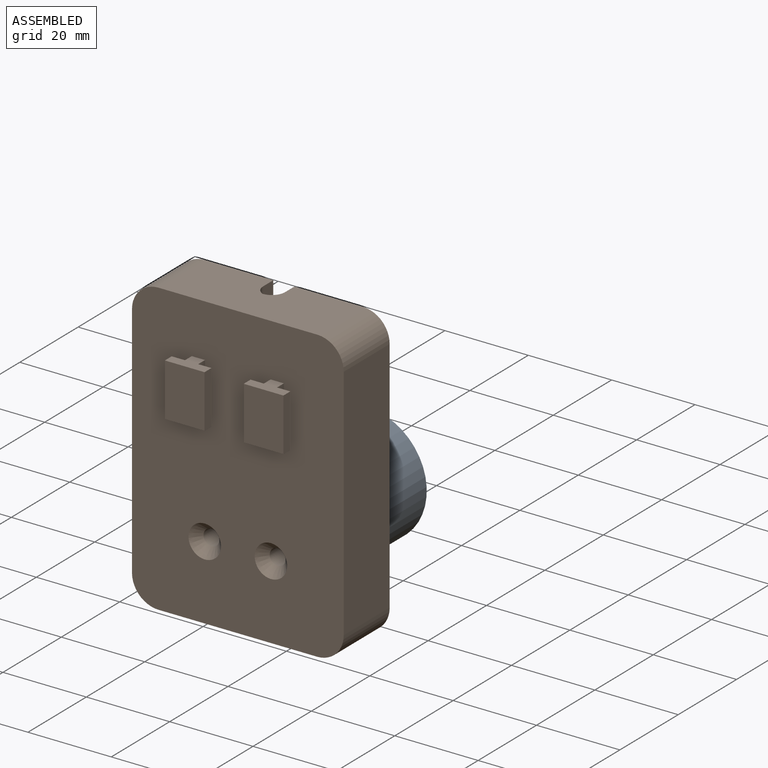
[diagram: assembled view]
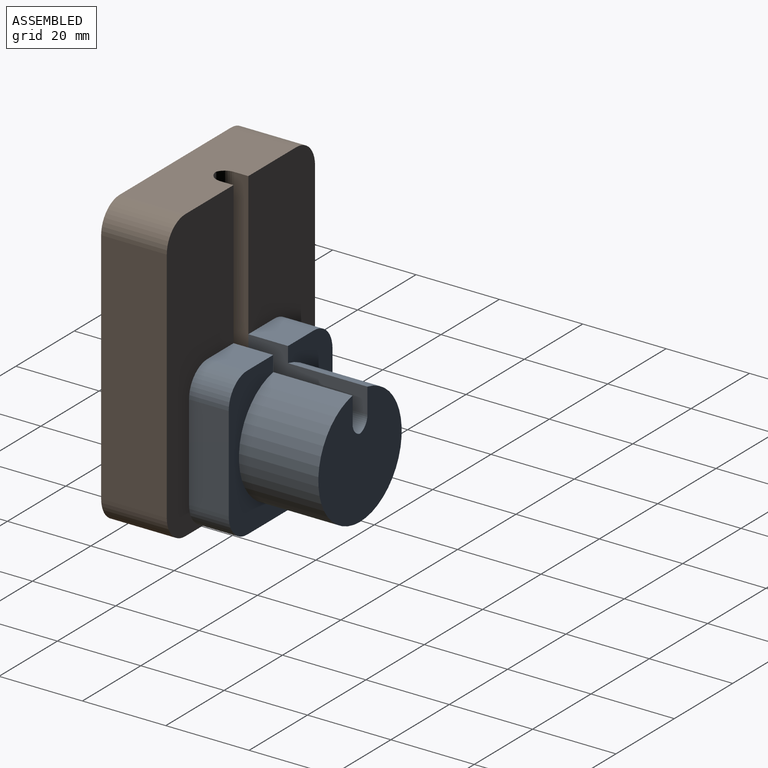
[diagram: assembled view, second angle]
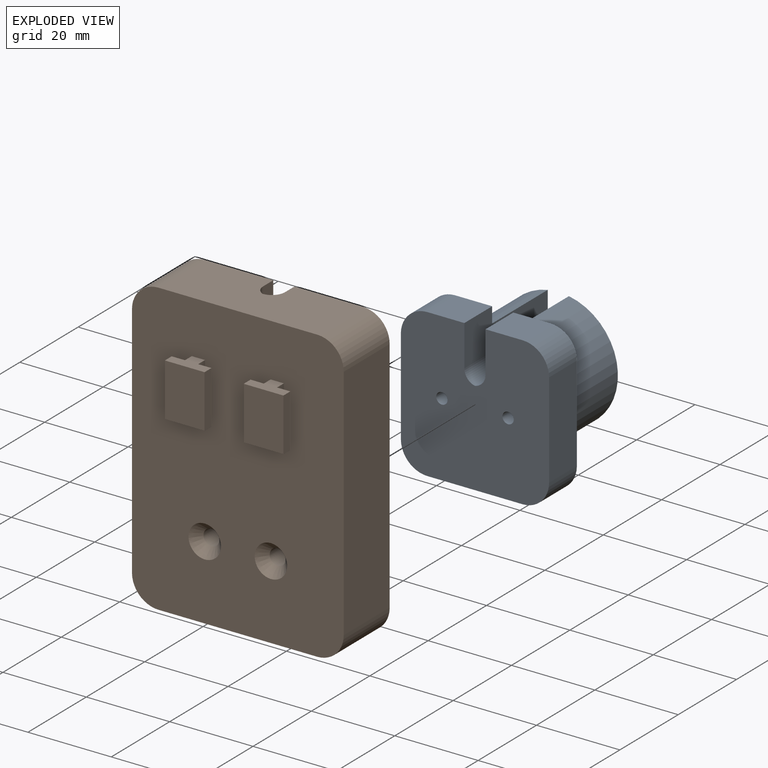
[diagram: exploded view]
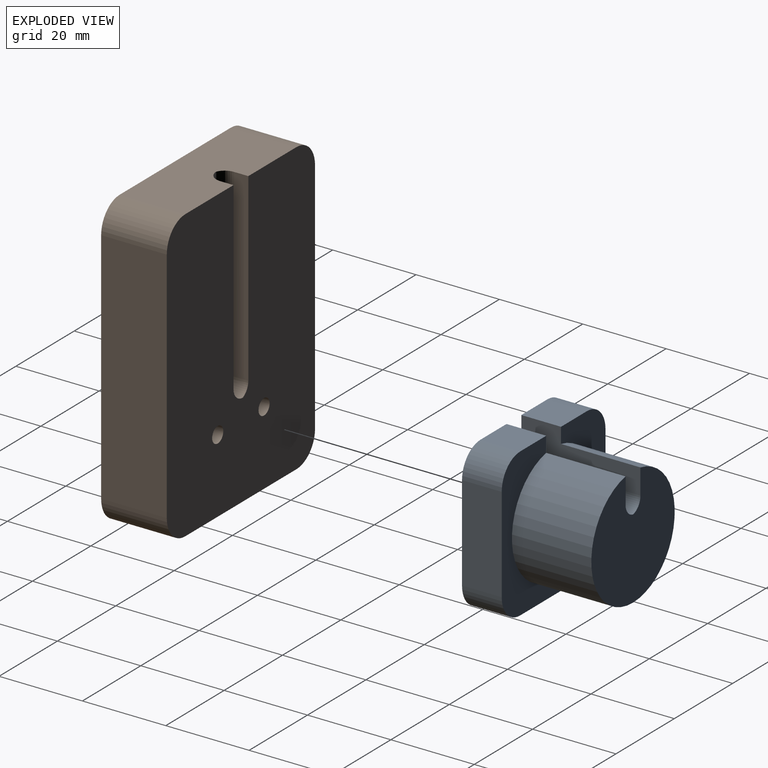
[diagram: exploded view, second angle]
ASSEMBLY  parts=2 mates=2
PART A: 21 faces, bbox 35.6x28.6x35.6 mm
  f0: plane 9.53x8.89mm, normal (0,0,1), area 84.7mm2, adj f1,f2,f9,f17
  f1: plane 35.56x35.56mm, normal (0,-1,0), area 1156.6mm2, adj f0,f5,f6,f7,f8,f9,f10,f11
  f2: plane 35.56x35.56mm, normal (0,1,0), area 570.5mm2, adj f0,f3,f5,f6,f7,f8,f9,f10
  f3: cylinder r=14.29mm len=28.58mm, axis (0,-1,0), area 1612.8mm2, adj f2,f4,f17,f18
  f4: plane 28.58x28.35mm, normal (0,1,0), area 597.6mm2, adj f3,f17,f18,f19,f20
  f5: cylinder r=6.35mm len=9.53mm, axis (0,1,0), area 95mm2, adj f1,f2,f6,f12
  f6: plane 22.86x9.53mm, normal (0,0,-1), area 217.7mm2, adj f1,f2,f5,f7
  f7: cylinder r=6.35mm len=9.53mm, axis (0,1,0), area 95mm2, adj f1,f2,f6,f8
  f8: plane 22.86x9.53mm, normal (1,0,0), area 217.7mm2, adj f1,f2,f7,f9
  f9: cylinder r=6.35mm len=9.53mm, axis (0,1,0), area 95mm2, adj f0,f1,f2,f8
  f10: plane 9.53x8.89mm, normal (0,0,1), area 84.7mm2, adj f1,f2,f11,f18
  f11: cylinder r=6.35mm len=9.53mm, axis (0,1,0), area 95mm2, adj f1,f2,f10,f12
  f12: plane 22.86x9.53mm, normal (-1,0,0), area 217.7mm2, adj f1,f2,f5,f11
  f13: cylinder r=1.35mm len=15.09mm, axis (0,-1,0), area 128.2mm2, adj f1,f14
  f14: cone r=0mm half-angle=59deg, axis (0,-1,0), area 6.7mm2, adj f13
  f15: cylinder r=1.35mm len=15.09mm, axis (0,-1,0), area 128.2mm2, adj f1,f16
  f16: cone r=0mm half-angle=59deg, axis (0,-1,0), area 6.7mm2, adj f15
  f17: plane 28.58x9.84mm, normal (-1,0,0), area 210.4mm2, adj f0,f1,f2,f3,f4,f19
  f18: plane 28.58x9.84mm, normal (1,0,0), area 210.4mm2, adj f1,f2,f3,f4,f10,f20
  f19: cylinder r=3.17mm len=28.58mm, axis (0,1,0), area 124.2mm2, adj f1,f4,f17,f20
  f20: cylinder r=3.17mm len=28.58mm, axis (0,-1,0), area 124.2mm2, adj f1,f4,f18,f19
PART B: 38 faces, bbox 50.8x20.4x69.9 mm
  f0: plane 38.1x15.75mm, normal (0,0,1), area 571.5mm2, adj f1,f5,f24,f25,f32,f33,f34,f36
  f1: plane 69.85x50.8mm, normal (0,-1,0), area 3337.6mm2, adj f0,f2,f3,f4,f6,f7,f8,f9
  f2: plane 57.15x15.75mm, normal (1,0,0), area 900mm2, adj f1,f5,f24,f27
  f3: plane 57.15x15.75mm, normal (-1,0,0), area 900mm2, adj f1,f5,f25,f26
  f4: plane 38.1x15.75mm, normal (0,0,-1), area 600mm2, adj f1,f5,f26,f27
  f5: plane 69.85x50.8mm, normal (0,1,0), area 3254.5mm2, adj f0,f2,f3,f4,f24,f25,f26,f27
  f6: plane 12.7x2.35mm, normal (-1,0,0), area 29.8mm2, adj f1,f7,f9,f14
  f7: plane 9.53x4.7mm, normal (0,0,-1), area 29.8mm2, adj f1,f6,f8,f14,f15,f16,f17,f18
  f8: plane 12.7x2.35mm, normal (1,0,0), area 29.8mm2, adj f1,f7,f9,f18
  f9: plane 9.53x4.7mm, normal (0,0,1), area 29.8mm2, adj f1,f6,f8,f14,f15,f16,f17,f18
  f10: plane 12.7x2.35mm, normal (-1,0,0), area 29.8mm2, adj f1,f11,f13,f19
  f11: plane 9.53x4.7mm, normal (0,0,-1), area 29.8mm2, adj f1,f10,f12,f19,f20,f21,f22,f23
  f12: plane 12.7x2.35mm, normal (1,0,0), area 29.8mm2, adj f1,f11,f13,f23
  f13: plane 9.53x4.7mm, normal (0,0,1), area 29.8mm2, adj f1,f10,f12,f19,f20,f21,f22,f23
  f14: plane 12.7x3.18mm, normal (0,1,0), area 40.3mm2, adj f6,f7,f9,f15
  f15: plane 12.7x2.35mm, normal (-1,0,0), area 29.8mm2, adj f7,f9,f14,f17
  f16: plane 12.7x2.35mm, normal (1,0,0), area 29.8mm2, adj f7,f9,f17,f18
  f17: plane 12.7x9.53mm, normal (0,-1,0), area 121mm2, adj f7,f9,f15,f16
  f18: plane 12.7x3.18mm, normal (0,1,0), area 40.3mm2, adj f7,f8,f9,f16
  f19: plane 12.7x3.18mm, normal (0,1,0), area 40.3mm2, adj f10,f11,f13,f20
  f20: plane 12.7x2.35mm, normal (-1,0,0), area 29.8mm2, adj f11,f13,f19,f22
  f21: plane 12.7x2.35mm, normal (1,0,0), area 29.8mm2, adj f11,f13,f22,f23
  f22: plane 12.7x9.53mm, normal (0,-1,0), area 121mm2, adj f11,f13,f20,f21
  f23: plane 12.7x3.18mm, normal (0,1,0), area 40.3mm2, adj f11,f12,f13,f21
  f24: cylinder r=6.35mm len=15.75mm, axis (0,1,0), area 157.1mm2, adj f0,f1,f2,f5
  f25: cylinder r=6.35mm len=15.75mm, axis (0,-1,0), area 157.1mm2, adj f0,f1,f3,f5
  f26: cylinder r=6.35mm len=15.75mm, axis (0,1,0), area 157.1mm2, adj f1,f3,f4,f5
  f27: cylinder r=6.35mm len=15.75mm, axis (0,-1,0), area 157.1mm2, adj f1,f2,f4,f5
  f28: cylinder r=1.9mm len=13.45mm, axis (0,-1,0), area 160.4mm2, adj f5,f29
  f29: cone r=1.9mm half-angle=41deg, axis (0,-1,0), area 55.5mm2, adj f1,f28
  f30: cylinder r=1.9mm len=13.45mm, axis (0,-1,0), area 160.4mm2, adj f5,f31
  f31: cone r=1.9mm half-angle=41deg, axis (0,-1,0), area 55.5mm2, adj f1,f30
  f32: plane 44.4x3.44mm, normal (1,0,0), area 152.7mm2, adj f0,f5,f36,f37
  f33: plane 44.13x3.18mm, normal (-1,0,0), area 140.1mm2, adj f0,f5,f34,f35
  f34: cylinder r=3.17mm len=47.31mm, axis (0,0,-1), area 230.2mm2, adj f0,f33,f35,f36
  f35: cylinder r=3.17mm len=6.35mm, axis (0,-1,0), area 25.9mm2, adj f5,f33,f34,f37
  f36: cylinder r=3.17mm len=47.31mm, axis (0,0,-1), area 169.5mm2, adj f0,f32,f34,f37
  f37: cylinder r=3.17mm len=6.35mm, axis (0,1,0), area 18.7mm2, adj f5,f32,f35,f36
PLACE A t=(9.24,4.01,5.16)mm
PLACE B t=(34.64,-5.51,-12.62)mm
MATE fastened B.f28 <-> A.f13  axis (0,1,0) through (1.3,-5.51,5.16)mm
MATE fastened A.f15 <-> B.f30  axis (0,-1,0) through (17.18,-5.51,5.16)mm
